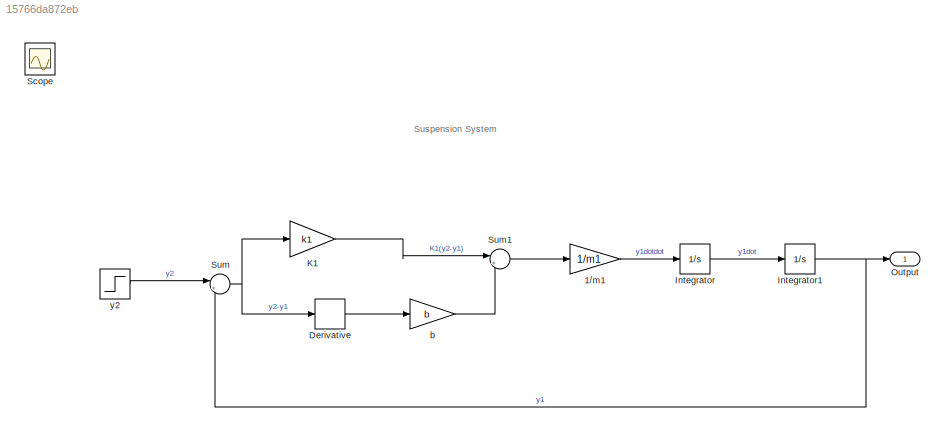
MODEL slx_15766da872eb
KIND model
CONFIG AbsTol = auto
CONFIG EnableMultiTasking = off
CONFIG FixedStep = auto
CONFIG MaxStep = auto
CONFIG MinStep = auto
CONFIG RelTol = 1e-3
CONFIG SampleTimeConstraint = Unconstrained
CONFIG SolverName = VariableStepAuto
CONFIG StartTime = 0.0
CONFIG StopTime = 100
WORKSPACE source: mxarray member
WORKSPACE b = 1000
WORKSPACE k1 = 25000
WORKSPACE m1 = 500
BLOCK [Gain] 1//m1
  Gain = 1/m1
BLOCK [Derivative] Derivative
BLOCK [Integrator] Integrator
  Ports = [1, 1]
BLOCK [Integrator] Integrator1
  Ports = [1, 1]
BLOCK [Gain] K1
  Gain = k1
BLOCK [Outport] Output
BLOCK [Scope] Scope
  Floating = off
  IOType = viewer
  NumInputPorts = 1
  Ports = []
  ScopeSpecificationString = Simulink.scopes.TimeScopeBlockCfg('CurrentConfiguration', extmgr.ConfigurationSet(extmgr.Configuration('Core','General UI',true),extmgr.Configuration('Core','Source UI',true),extmgr.Configuration('Sources','WiredSimulink',true),extmgr.Configuration('Visuals','Time Domain',true,'SerializedDisplays',{struct('MinYLimReal','-0.20361','MaxYLimReal','1.83253','YLabelReal','','MinYLimMag','0.00000','MaxY...<+1919ch>
BLOCK [Sum] Sum
  Inputs = |+-
  Ports = [2, 1]
BLOCK [Sum] Sum1
  Inputs = |++
  Ports = [2, 1]
BLOCK [Gain] b
  Gain = b
BLOCK [Step] y2
  SampleTime = 0
ANNOTATION (root): Suspension System
LINE 1//m1:1 -> Integrator:1
LINE Derivative:1 -> b:1
NET Integrator1:1 -> Output:1, Sum:2
LINE Integrator:1 -> Integrator1:1
LINE K1:1 -> Sum1:1
LINE Sum1:1 -> 1//m1:1
NET Sum:1 -> Derivative:1, K1:1
LINE b:1 -> Sum1:2
LINE y2:1 -> Sum:1
note: NET lines group one-source signal fan-out (src -> all destinations, sorted); 1:1 wires keep LINE
